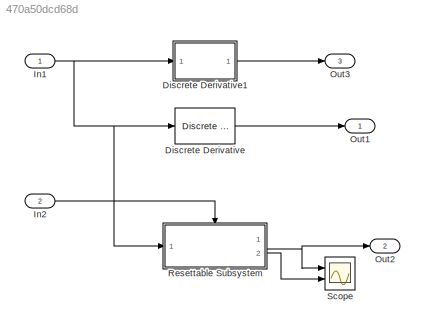
MODEL slx_470a50dcd68d
KIND model
CONFIG AbsTol = auto
CONFIG EnableMultiTasking = on
CONFIG FixedStep = 0.010000
CONFIG MaxStep = auto
CONFIG MinStep = auto
CONFIG RelTol = 1e-3
CONFIG SampleTimeConstraint = Unconstrained
CONFIG Solver = FixedStepDiscrete
CONFIG SolverName = FixedStepDiscrete
CONFIG StartTime = 0.0
CONFIG StopTime = 10.0
BLOCK [Reference] Discrete Derivative  REF=simulink/Discrete/Discrete Derivative
  Ports = [1, 1]
  SourceBlock = simulink/Discrete/Discrete Derivative
  SourceProductBaseCode = SL
  SourceProductName = Simulink
  SourceType = Discrete Derivative
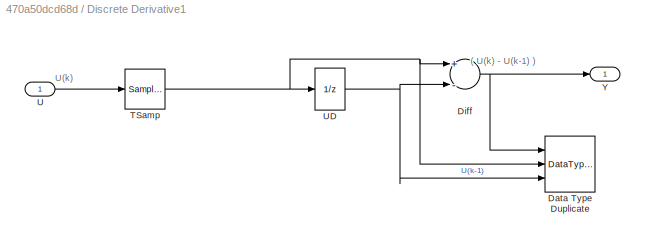
BLOCK [SubSystem] Discrete Derivative1
  MinAlgLoopOccurrences = on
  Ports = [1, 1]
  RequestExecContextInheritance = off
  TreatAsAtomicUnit = on
  Variant = off
BLOCK [DataTypeDuplicate] Discrete Derivative1/Data Type Duplicate
  DisableCoverage = on
  NumInputPorts = 3
  Ports = [3]
BLOCK [Sum] Discrete Derivative1/Diff
  Description = Add in CPU
  InputSameDT = off
  Inputs = +-
  OutDataTypeStr = Inherit: Inherit via back propagation
  Ports = [2, 1]
  SaturateOnIntegerOverflow = off
BLOCK [SampleTimeMath] Discrete Derivative1/TSamp
  DisableCoverage = on
  TsampMathImp = Offline Scaling Adjustment
  TsampMathOp = /
  weightValue = 1
BLOCK [Inport] Discrete Derivative1/U
  IconDisplay = Port number
BLOCK [UnitDelay] Discrete Derivative1/UD
  Description = Store in Global RAM
  DisableCoverage = on
  InitialCondition = 3.9
  SampleTime = -1
BLOCK [Outport] Discrete Derivative1/Y
  IconDisplay = Port number
  InitialOutput = 0
BLOCK [Inport] In1
  IconDisplay = Port number
BLOCK [Inport] In2
  IconDisplay = Port number
  Port = 2
BLOCK [Outport] Out1
  IconDisplay = Port number
BLOCK [Outport] Out2
  IconDisplay = Port number
  Port = 2
BLOCK [Outport] Out3
  IconDisplay = Port number
  Port = 3
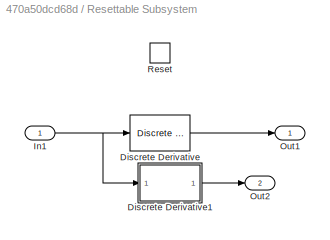
BLOCK [SubSystem] Resettable Subsystem
  Ports = [1, 2, 0, 0, 0, 0, 0, 0, 1]
  RequestExecContextInheritance = off
  TreatAsAtomicUnit = on
  Variant = off
BLOCK [Reference] Resettable Subsystem/Discrete Derivative  REF=simulink/Discrete/Discrete Derivative
  Ports = [1, 1]
  SourceBlock = simulink/Discrete/Discrete Derivative
  SourceProductBaseCode = SL
  SourceProductName = Simulink
  SourceType = Discrete Derivative
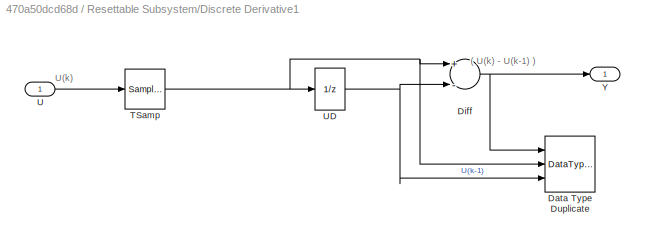
BLOCK [SubSystem] Resettable Subsystem/Discrete Derivative1
  MinAlgLoopOccurrences = on
  Ports = [1, 1]
  RequestExecContextInheritance = off
  TreatAsAtomicUnit = on
  Variant = off
BLOCK [DataTypeDuplicate] Resettable Subsystem/Discrete Derivative1/Data Type Duplicate
  DisableCoverage = on
  NumInputPorts = 3
  Ports = [3]
BLOCK [Sum] Resettable Subsystem/Discrete Derivative1/Diff
  Description = Add in CPU
  InputSameDT = off
  Inputs = +-
  OutDataTypeStr = Inherit: Inherit via back propagation
  Ports = [2, 1]
  SaturateOnIntegerOverflow = off
BLOCK [SampleTimeMath] Resettable Subsystem/Discrete Derivative1/TSamp
  DisableCoverage = on
  TsampMathImp = Offline Scaling Adjustment
  TsampMathOp = /
  weightValue = 1
BLOCK [Inport] Resettable Subsystem/Discrete Derivative1/U
  IconDisplay = Port number
BLOCK [UnitDelay] Resettable Subsystem/Discrete Derivative1/UD
  Description = Store in Global RAM
  DisableCoverage = on
  InitialCondition = 3.9
  SampleTime = -1
BLOCK [Outport] Resettable Subsystem/Discrete Derivative1/Y
  IconDisplay = Port number
  InitialOutput = 0
BLOCK [Inport] Resettable Subsystem/In1
  IconDisplay = Port number
BLOCK [Outport] Resettable Subsystem/Out1
  IconDisplay = Port number
BLOCK [Outport] Resettable Subsystem/Out2
  IconDisplay = Port number
  Port = 2
BLOCK [ResetPort] Resettable Subsystem/Reset
  DisableCoverage = on
BLOCK [Scope] Scope
  NumInputPorts = 2
  Ports = [2]
  ScopeSpecificationString = C++SS(StrPVP('Open','off'),StrPVP('TimeRange','auto'),StrPVP('TickLabels','OneTimeTick'),StrPVP('ShowLegends','off'),StrPVP('LimitDataPoints','off'),StrPVP('MaxDataPoints','5000'),StrPVP('SaveToWorkspace','off'),StrPVP('SaveName','ScopeData'),StrPVP('YMin','-491.43629~-101.40726'),StrPVP('YMax','599.91417~116.86283'),StrPVP('BlockParamSampleInput','off'),StrPVP('BlockParamSampleTime','-1'),StrPVP(...<+819ch>
ANNOTATION Discrete Derivative1: ( U(k) - U(k-1) )
ANNOTATION Discrete Derivative1: U(k)
ANNOTATION Resettable Subsystem/Discrete Derivative1: ( U(k) - U(k-1) )
ANNOTATION Resettable Subsystem/Discrete Derivative1: U(k)
NET Discrete Derivative1/Diff:1 -> Discrete Derivative1/Data Type Duplicate:1, Discrete Derivative1/Y:1
NET Discrete Derivative1/TSamp:1 -> Discrete Derivative1/Data Type Duplicate:2, Discrete Derivative1/Diff:1, Discrete Derivative1/UD:1
LINE Discrete Derivative1/U:1 -> Discrete Derivative1/TSamp:1
NET Discrete Derivative1/UD:1 -> Discrete Derivative1/Data Type Duplicate:3, Discrete Derivative1/Diff:2
LINE Discrete Derivative1:1 -> Out3:1
LINE Discrete Derivative:1 -> Out1:1
NET In1:1 -> Discrete Derivative1:1, Discrete Derivative:1, Resettable Subsystem:1
LINE In2:1 -> Resettable Subsystem:Reset
NET Resettable Subsystem/Discrete Derivative1/Diff:1 -> Resettable Subsystem/Discrete Derivative1/Data Type Duplicate:1, Resettable Subsystem/Discrete Derivative1/Y:1
NET Resettable Subsystem/Discrete Derivative1/TSamp:1 -> Resettable Subsystem/Discrete Derivative1/Data Type Duplicate:2, Resettable Subsystem/Discrete Derivative1/Diff:1, Resettable Subsystem/Discrete Derivative1/UD:1
LINE Resettable Subsystem/Discrete Derivative1/U:1 -> Resettable Subsystem/Discrete Derivative1/TSamp:1
NET Resettable Subsystem/Discrete Derivative1/UD:1 -> Resettable Subsystem/Discrete Derivative1/Data Type Duplicate:3, Resettable Subsystem/Discrete Derivative1/Diff:2
LINE Resettable Subsystem/Discrete Derivative1:1 -> Resettable Subsystem/Out2:1
LINE Resettable Subsystem/Discrete Derivative:1 -> Resettable Subsystem/Out1:1
NET Resettable Subsystem/In1:1 -> Resettable Subsystem/Discrete Derivative1:1, Resettable Subsystem/Discrete Derivative:1
NET Resettable Subsystem:1 -> Out2:1, Scope:1
LINE Resettable Subsystem:2 -> Scope:2
note: NET lines group one-source signal fan-out (src -> all destinations, sorted); 1:1 wires keep LINE
